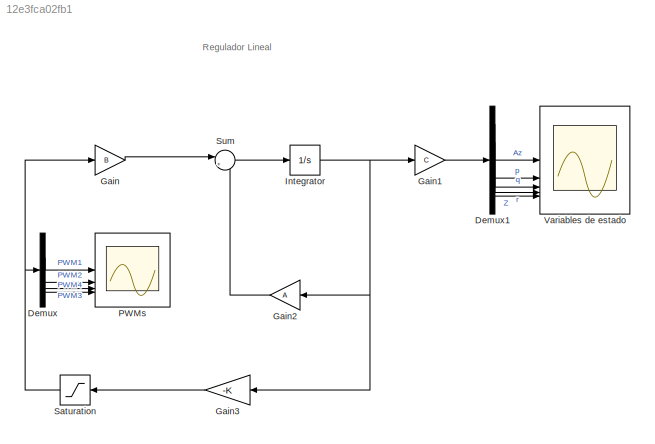
MODEL slx_12e3fca02fb1
KIND model
CONFIG AbsTol = auto
CONFIG EnableMultiTasking = off
CONFIG FixedStep = auto
CONFIG MaxStep = auto
CONFIG MinStep = auto
CONFIG RelTol = 1e-3
CONFIG SampleTimeConstraint = Unconstrained
CONFIG SolverName = VariableStepAuto
CONFIG StartTime = 0.0
CONFIG StopTime = 10.0
BLOCK [Demux] Demux
BLOCK [Demux] Demux1
  Outputs = 5
BLOCK [Gain] Gain
  Gain = B
  Multiplication = Matrix(K*u)
BLOCK [Gain] Gain1
  Gain = C
  Multiplication = Matrix(K*u)
BLOCK [Gain] Gain2
  Gain = A
  Multiplication = Matrix(K*u)
BLOCK [Gain] Gain3
  Gain = -K
  Multiplication = Matrix(K*u)
BLOCK [Integrator] Integrator
  InitialCondition = [0 0 0 0 1]
BLOCK [Scope] PWMs
  Floating = off
  NumInputPorts = 4
  ScopeSpecificationString = Simulink.scopes.TimeScopeBlockCfg('CurrentConfiguration', extmgr.ConfigurationSet(extmgr.Configuration('Core','General UI',true),extmgr.Configuration('Core','Source UI',true),extmgr.Configuration('Sources','WiredSimulink',true,'DataLoggingVariableName','ScopeData1'),extmgr.Configuration('Visuals','Time Domain',true,'SerializedDisplays',{struct('MinYLimReal','-1.00000','MaxYLimReal','1.00000','YLab...<+1470ch>
BLOCK [Saturate] Saturation
  LowerLimit = -2e-3
  UpperLimit = 2e-3
BLOCK [Sum] Sum
  Inputs = |++
BLOCK [Scope] Variables de estado
  Floating = off
  NumInputPorts = 5
  ScopeSpecificationString = Simulink.scopes.TimeScopeBlockCfg('CurrentConfiguration', extmgr.ConfigurationSet(extmgr.Configuration('Core','General UI',true),extmgr.Configuration('Core','Source UI',true),extmgr.Configuration('Sources','WiredSimulink',true),extmgr.Configuration('Visuals','Time Domain',true,'SerializedDisplays',{struct('MinYLimReal','-5.13804','MaxYLimReal','1.682','YLabelReal','','MinYLimMag','0.00000','MaxYLi...<+1424ch>
ANNOTATION (root): Regulador Lineal
LINE Demux1:1 -> Variables de estado:1
LINE Demux1:2 -> Variables de estado:2
LINE Demux1:3 -> Variables de estado:3
LINE Demux1:4 -> Variables de estado:4
LINE Demux1:5 -> Variables de estado:5
LINE Demux:1 -> PWMs:1
LINE Demux:2 -> PWMs:2
LINE Demux:3 -> PWMs:3
LINE Demux:4 -> PWMs:4
LINE Gain1:1 -> Demux1:1
LINE Gain2:1 -> Sum:2
LINE Gain3:1 -> Saturation:1
LINE Gain:1 -> Sum:1
NET Integrator:1 -> Gain1:1, Gain2:1, Gain3:1
NET Saturation:1 -> Demux:1, Gain:1
LINE Sum:1 -> Integrator:1
note: NET lines group one-source signal fan-out (src -> all destinations, sorted); 1:1 wires keep LINE
